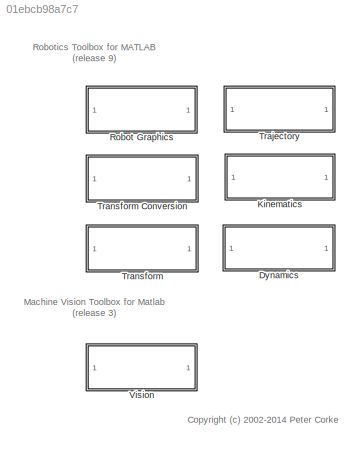
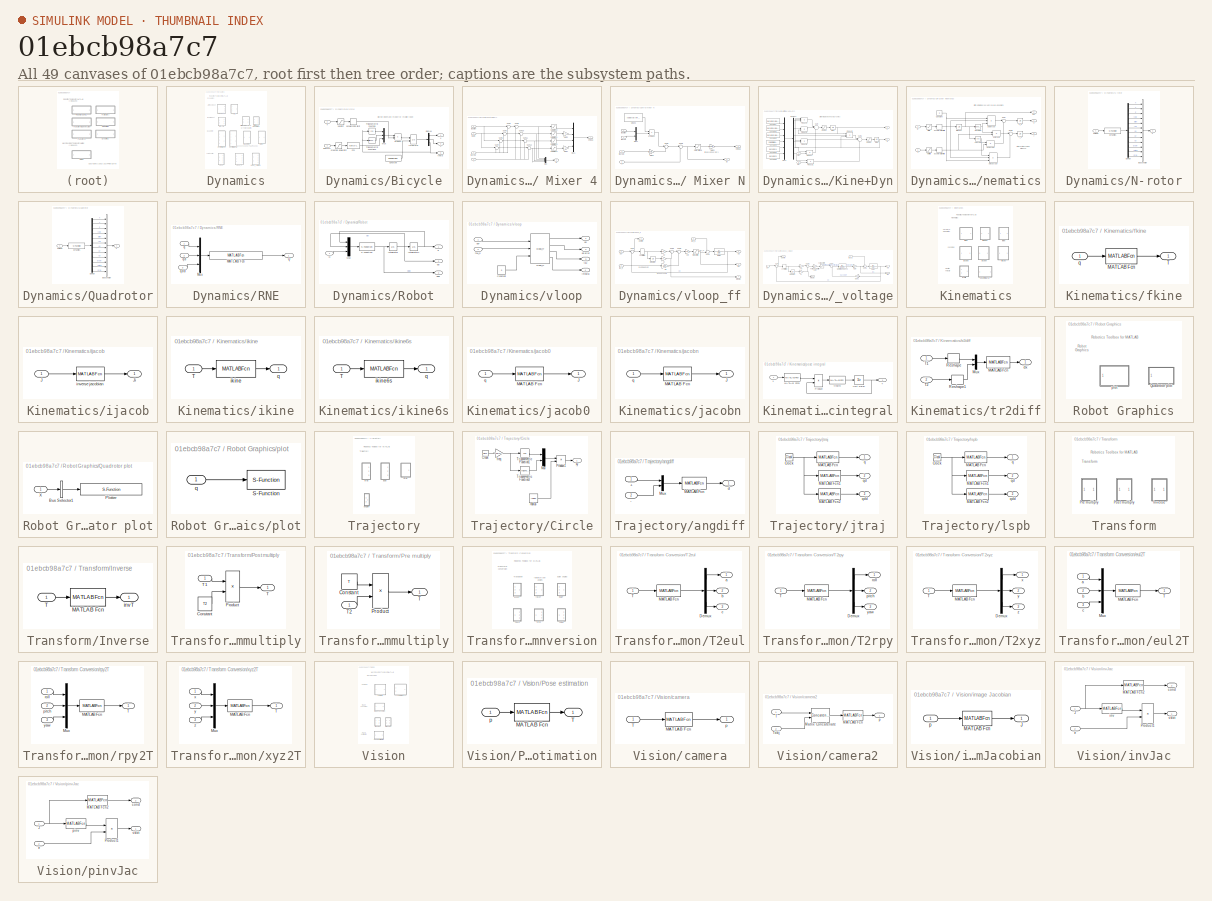
[diagram: thumbnail index - all 49 canvases of the model, root first then tree order]
MODEL slx_01ebcb98a7c7
KIND library
CONFIG AbsTol = auto
CONFIG FixedStep = auto
CONFIG MaxStep = auto
CONFIG MinStep = auto
CONFIG RelTol = 1e-3
CONFIG SampleTimeConstraint = Unconstrained
CONFIG Solver = ode45
CONFIG SolverMode = Auto
CONFIG SolverName = ode45
CONFIG StartTime = 0.0
CONFIG StopTime = 10.0
BLOCK [SubSystem] Dynamics
  Ports = []
  RequestExecContextInheritance = off
BLOCK [SubSystem] Dynamics/Bicycle
  Ports = [2, 3]
  RequestExecContextInheritance = off
BLOCK [Constant] Dynamics/Bicycle/Constant
  Value = handbrake
BLOCK [Demux] Dynamics/Bicycle/Demux
  DisplayOption = bar
  Outputs = 3
  Ports = [1, 3]
BLOCK [Fcn] Dynamics/Bicycle/Fcn
  Expr = tan(u)/L
BLOCK [Integrator] Dynamics/Bicycle/Integrator
  ExternalReset = level
  InitialCondition = x0
  Ports = [2, 1]
BLOCK [Mux] Dynamics/Bicycle/Mux
  DisplayOption = bar
  Inputs = 3
  Ports = [3, 1]
BLOCK [Product] Dynamics/Bicycle/Product
  InputSameDT = off
  OutDataTypeStr = Inherit: Inherit via internal rule
  Ports = [2, 1]
  SaturateOnIntegerOverflow = off
BLOCK [Trigonometry] Dynamics/Bicycle/Trigonometric Function
  Operator = cos
  Ports = [1, 1]
BLOCK [Trigonometry] Dynamics/Bicycle/Trigonometric Function2
  Ports = [1, 1]
BLOCK [RateLimiter] Dynamics/Bicycle/acceleration limit
  FallingSlewLimit = -accel
  RisingSlewLimit = accel
  SampleTimeMode = inherited
BLOCK [Inport] Dynamics/Bicycle/gamma
  IconDisplay = Port number
  Port = 2
BLOCK [Saturate] Dynamics/Bicycle/steering angle limit
  InputPortMap = u0
  LowerLimit = -alim
  Ports = [1, 1]
  UpperLimit = alim
BLOCK [Outport] Dynamics/Bicycle/theta
  IconDisplay = Port number
  Port = 3
BLOCK [Inport] Dynamics/Bicycle/v
  IconDisplay = Port number
BLOCK [Saturate] Dynamics/Bicycle/vel limit
  InputPortMap = u0
  LowerLimit = -vlim
  Ports = [1, 1]
  UpperLimit = vlim
BLOCK [Outport] Dynamics/Bicycle/x
  IconDisplay = Port number
BLOCK [Outport] Dynamics/Bicycle/y
  IconDisplay = Port number
  Port = 2
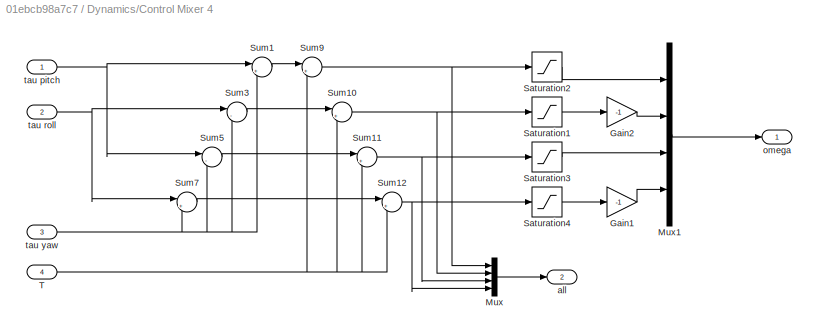
BLOCK [SubSystem] Dynamics/Control Mixer 4
  Ports = [4, 2]
  RequestExecContextInheritance = off
BLOCK [Gain] Dynamics/Control Mixer 4/Gain1
  Gain = -1
  OutDataTypeStr = Inherit: Inherit via internal rule
  ParamDataTypeStr = Inherit: Inherit via internal rule
  SaturateOnIntegerOverflow = off
BLOCK [Gain] Dynamics/Control Mixer 4/Gain2
  Gain = -1
  OutDataTypeStr = Inherit: Inherit via internal rule
  ParamDataTypeStr = Inherit: Inherit via internal rule
  SaturateOnIntegerOverflow = off
BLOCK [Mux] Dynamics/Control Mixer 4/Mux
  DisplayOption = bar
  Ports = [4, 1]
BLOCK [Mux] Dynamics/Control Mixer 4/Mux1
  DisplayOption = bar
  Ports = [4, 1]
BLOCK [Saturate] Dynamics/Control Mixer 4/Saturation1
  InputPortMap = u0
  LowerLimit = 700
  Ports = [1, 1]
  UpperLimit = 1000
BLOCK [Saturate] Dynamics/Control Mixer 4/Saturation2
  InputPortMap = u0
  LowerLimit = 700
  Ports = [1, 1]
  UpperLimit = 1000
BLOCK [Saturate] Dynamics/Control Mixer 4/Saturation3
  InputPortMap = u0
  LowerLimit = 700
  Ports = [1, 1]
  UpperLimit = 1000
BLOCK [Saturate] Dynamics/Control Mixer 4/Saturation4
  InputPortMap = u0
  LowerLimit = 700
  Ports = [1, 1]
  UpperLimit = 1000
BLOCK [Sum] Dynamics/Control Mixer 4/Sum1
  IconShape = round
  Inputs = |++
  Ports = [2, 1]
BLOCK [Sum] Dynamics/Control Mixer 4/Sum10
  IconShape = round
  Inputs = |++
  Ports = [2, 1]
BLOCK [Sum] Dynamics/Control Mixer 4/Sum11
  IconShape = round
  Inputs = |++
  Ports = [2, 1]
BLOCK [Sum] Dynamics/Control Mixer 4/Sum12
  IconShape = round
  Inputs = |++
  Ports = [2, 1]
BLOCK [Sum] Dynamics/Control Mixer 4/Sum3
  IconShape = round
  Inputs = |--
  Ports = [2, 1]
BLOCK [Sum] Dynamics/Control Mixer 4/Sum5
  IconShape = round
  Inputs = |-+
  Ports = [2, 1]
BLOCK [Sum] Dynamics/Control Mixer 4/Sum7
  IconShape = round
  Inputs = |+-
  Ports = [2, 1]
BLOCK [Sum] Dynamics/Control Mixer 4/Sum9
  IconShape = round
  Inputs = |++
  Ports = [2, 1]
BLOCK [Inport] Dynamics/Control Mixer 4/T
  IconDisplay = Port number
  Port = 4
BLOCK [Outport] Dynamics/Control Mixer 4/all
  IconDisplay = Port number
  Port = 2
BLOCK [Outport] Dynamics/Control Mixer 4/omega
  IconDisplay = Port number
BLOCK [Inport] Dynamics/Control Mixer 4/tau pitch
  IconDisplay = Port number
BLOCK [Inport] Dynamics/Control Mixer 4/tau roll
  IconDisplay = Port number
  Port = 2
BLOCK [Inport] Dynamics/Control Mixer 4/tau yaw
  IconDisplay = Port number
  Port = 3
BLOCK [SubSystem] Dynamics/Control Mixer N
  Ports = [4, 2]
  RequestExecContextInheritance = off
BLOCK [Gain] Dynamics/Control Mixer N/Gain3
  Gain = (mod([1:nrotors],2)==1)*2-1
  OutDataTypeStr = Inherit: Inherit via internal rule
  ParamDataTypeStr = Inherit: Inherit via internal rule
  SaturateOnIntegerOverflow = off
BLOCK [Gain] Dynamics/Control Mixer N/Gain4
  Gain = (mod([1:nrotors],2)==1)*2-1
  OutDataTypeStr = Inherit: Inherit via internal rule
  ParamDataTypeStr = Inherit: Inherit via internal rule
  SaturateOnIntegerOverflow = off
BLOCK [Mux] Dynamics/Control Mixer N/Mux1
  DisplayOption = bar
  Inputs = 2
  Ports = [2, 1]
BLOCK [Product] Dynamics/Control Mixer N/Product
  InputSameDT = off
  Multiplication = Matrix(*)
  OutDataTypeStr = Inherit: Inherit via internal rule
  Ports = [2, 1]
  RndMeth = Floor
  SaturateOnIntegerOverflow = off
BLOCK [Saturate] Dynamics/Control Mixer N/Saturation5
  InputPortMap = u0
  LowerLimit = wmin
  Ports = [1, 1]
  UpperLimit = wmax
BLOCK [Sum] Dynamics/Control Mixer N/Sum1
  IconShape = round
  Inputs = |++
  Ports = [2, 1]
BLOCK [Sum] Dynamics/Control Mixer N/Sum2
  IconShape = round
  Inputs = |++
  Ports = [2, 1]
BLOCK [Inport] Dynamics/Control Mixer N/T
  IconDisplay = Port number
  Port = 4
BLOCK [Outport] Dynamics/Control Mixer N/all
  IconDisplay = Port number
  Port = 2
BLOCK [Outport] Dynamics/Control Mixer N/omega
  IconDisplay = Port number
BLOCK [Constant] Dynamics/Control Mixer N/sin//cos
  SampleTime = 0
  Value = [cos([0:(nrotors-1)]'*2*pi)  -sin([0:(nrotors-1)]'*2*pi)]
  VectorParams1D = off
BLOCK [Inport] Dynamics/Control Mixer N/tau pitch
  IconDisplay = Port number
BLOCK [Inport] Dynamics/Control Mixer N/tau roll
  IconDisplay = Port number
  Port = 2
BLOCK [Inport] Dynamics/Control Mixer N/tau yaw
  IconDisplay = Port number
  Port = 3
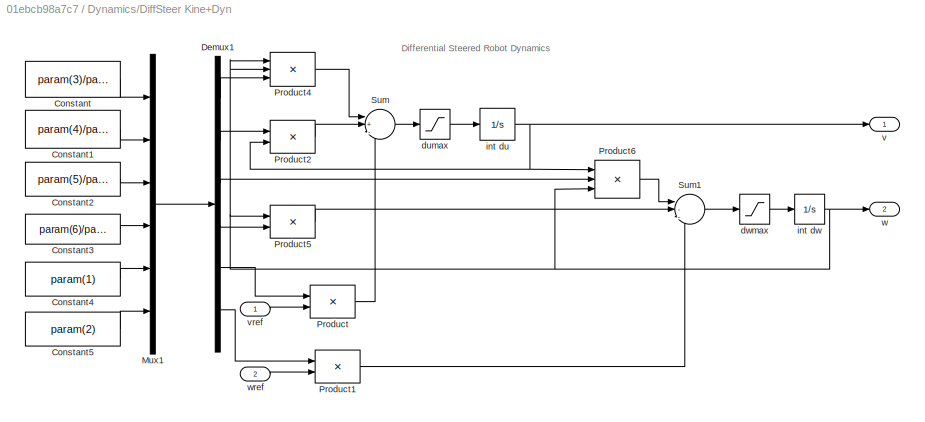
BLOCK [SubSystem] Dynamics/DiffSteer Kine+Dyn
  Ports = [2, 2]
  RequestExecContextInheritance = off
BLOCK [Constant] Dynamics/DiffSteer Kine+Dyn/Constant
  Value = param(3)/param(1)
BLOCK [Constant] Dynamics/DiffSteer Kine+Dyn/Constant1
  Value = param(4)/param(1)
BLOCK [Constant] Dynamics/DiffSteer Kine+Dyn/Constant2
  Value = param(5)/param(2)
BLOCK [Constant] Dynamics/DiffSteer Kine+Dyn/Constant3
  Value = param(6)/param(2)
BLOCK [Constant] Dynamics/DiffSteer Kine+Dyn/Constant4
  Value = param(1)
BLOCK [Constant] Dynamics/DiffSteer Kine+Dyn/Constant5
  Value = param(2)
BLOCK [Demux] Dynamics/DiffSteer Kine+Dyn/Demux1
  Outputs = 6
  Ports = [1, 6]
BLOCK [Mux] Dynamics/DiffSteer Kine+Dyn/Mux1
  DisplayOption = bar
  Inputs = 6
  Ports = [6, 1]
BLOCK [Product] Dynamics/DiffSteer Kine+Dyn/Product
  InputSameDT = off
  Ports = [2, 1]
  RndMeth = Floor
BLOCK [Product] Dynamics/DiffSteer Kine+Dyn/Product1
  InputSameDT = off
  Ports = [2, 1]
  RndMeth = Floor
BLOCK [Product] Dynamics/DiffSteer Kine+Dyn/Product2
  InputSameDT = off
  Ports = [2, 1]
  RndMeth = Floor
BLOCK [Product] Dynamics/DiffSteer Kine+Dyn/Product4
  InputSameDT = off
  Inputs = 3
  Ports = [3, 1]
  RndMeth = Floor
BLOCK [Product] Dynamics/DiffSteer Kine+Dyn/Product5
  InputSameDT = off
  Ports = [2, 1]
  RndMeth = Floor
BLOCK [Product] Dynamics/DiffSteer Kine+Dyn/Product6
  InputSameDT = off
  Inputs = 3
  Ports = [3, 1]
  RndMeth = Floor
BLOCK [Sum] Dynamics/DiffSteer Kine+Dyn/Sum
  IconShape = round
  InputSameDT = off
  Inputs = |+-+
  OutDataTypeStr = Inherit: Inherit via internal rule
  Ports = [3, 1]
BLOCK [Sum] Dynamics/DiffSteer Kine+Dyn/Sum1
  IconShape = round
  InputSameDT = off
  Inputs = |--+
  OutDataTypeStr = Inherit: Inherit via internal rule
  Ports = [3, 1]
BLOCK [Saturate] Dynamics/DiffSteer Kine+Dyn/dumax
  InputPortMap = u0
  LowerLimit = -dumax
  Ports = [1, 1]
  UpperLimit = dumax
  ZeroCross = off
BLOCK [Saturate] Dynamics/DiffSteer Kine+Dyn/dwmax
  InputPortMap = u0
  LowerLimit = -dwmax
  Ports = [1, 1]
  UpperLimit = dwmax
  ZeroCross = off
BLOCK [Integrator] Dynamics/DiffSteer Kine+Dyn/int du
  LimitOutput = on
  LowerSaturationLimit = -umax
  Ports = [1, 1]
  UpperSaturationLimit = umax
BLOCK [Integrator] Dynamics/DiffSteer Kine+Dyn/int dw
  LimitOutput = on
  LowerSaturationLimit = -wmax
  Ports = [1, 1]
  UpperSaturationLimit = wmax
BLOCK [Outport] Dynamics/DiffSteer Kine+Dyn/v
  IconDisplay = Port number
BLOCK [Inport] Dynamics/DiffSteer Kine+Dyn/vref
  IconDisplay = Port number
BLOCK [Outport] Dynamics/DiffSteer Kine+Dyn/w
  IconDisplay = Port number
  Port = 2
BLOCK [Inport] Dynamics/DiffSteer Kine+Dyn/wref
  IconDisplay = Port number
  Port = 2
BLOCK [SubSystem] Dynamics/DiffSteer Kinematics
  Ports = [2, 3]
  RequestExecContextInheritance = off
BLOCK [Constant] Dynamics/DiffSteer Kinematics/Constant
  Value = a
BLOCK [Sum] Dynamics/DiffSteer Kinematics/Sum
  IconShape = round
  InputSameDT = off
  Inputs = |-+
  OutDataTypeStr = Inherit: Inherit via internal rule
  Ports = [2, 1]
BLOCK [Sum] Dynamics/DiffSteer Kinematics/Sum1
  IconShape = round
  InputSameDT = off
  Inputs = |++
  OutDataTypeStr = Inherit: Inherit via internal rule
  Ports = [2, 1]
BLOCK [Product] Dynamics/DiffSteer Kinematics/a w cos(psi)
  InputSameDT = off
  Inputs = 3
  Ports = [3, 1]
  RndMeth = Floor
BLOCK [Product] Dynamics/DiffSteer Kinematics/a w sin(psi)
  InputSameDT = off
  Inputs = 3
  Ports = [3, 1]
  RndMeth = Floor
BLOCK [RateLimiter] Dynamics/DiffSteer Kinematics/acceleration limit
  FallingSlewLimit = -dumax
  RisingSlewLimit = dumax
  SampleTimeMode = inherited
BLOCK [RateLimiter] Dynamics/DiffSteer Kinematics/acceleration limit1
  FallingSlewLimit = -dwmax
  RisingSlewLimit = dwmax
  SampleTimeMode = inherited
BLOCK [Trigonometry] Dynamics/DiffSteer Kinematics/cos(psi)
  Operator = cos
  Ports = [1, 1]
BLOCK [Integrator] Dynamics/DiffSteer Kinematics/int w = psi
  InitialCondition = x0(3)
  Ports = [1, 1]
BLOCK [Outport] Dynamics/DiffSteer Kinematics/psi
  IconDisplay = Port number
  Port = 3
BLOCK [Trigonometry] Dynamics/DiffSteer Kinematics/sin(theta)
  Ports = [1, 1]
BLOCK [Product] Dynamics/DiffSteer Kinematics/u cos(psi)
  InputSameDT = off
  Ports = [2, 1]
  RndMeth = Floor
BLOCK [Product] Dynamics/DiffSteer Kinematics/u sin(psi)
  InputSameDT = off
  Ports = [2, 1]
  RndMeth = Floor
BLOCK [Inport] Dynamics/DiffSteer Kinematics/v
  IconDisplay = Port number
BLOCK [Saturate] Dynamics/DiffSteer Kinematics/vel limit
  InputPortMap = u0
  LowerLimit = -umax
  Ports = [1, 1]
  UpperLimit = umax
BLOCK [Inport] Dynamics/DiffSteer Kinematics/w
  IconDisplay = Port number
  Port = 2
BLOCK [Saturate] Dynamics/DiffSteer Kinematics/w limit
  InputPortMap = u0
  LowerLimit = -wmax
  Ports = [1, 1]
  UpperLimit = wmax
BLOCK [Outport] Dynamics/DiffSteer Kinematics/x
  IconDisplay = Port number
BLOCK [Integrator] Dynamics/DiffSteer Kinematics/x_0
  InitialCondition = x0(1)
  Ports = [1, 1]
BLOCK [Outport] Dynamics/DiffSteer Kinematics/y
  IconDisplay = Port number
  Port = 2
BLOCK [Integrator] Dynamics/DiffSteer Kinematics/y_0
  InitialCondition = x0(2)
  Ports = [1, 1]
BLOCK [SubSystem] Dynamics/N-rotor
  Ports = [1, 1]
  RequestExecContextInheritance = off
BLOCK [BusCreator] Dynamics/N-rotor/Bus Creator
  DisplayOption = bar
  Inputs = 'X','Y','Z','yaw','pitch','roll','dx','dy','dz','dyaw','dpitch','droll'
  Ports = [12, 1]
BLOCK [Demux] Dynamics/N-rotor/Demux
  Outputs = 12
  Ports = [1, 12]
BLOCK [S-Function] Dynamics/N-rotor/Dynamics
  FunctionName = nrotor_dynamics
  Parameters = quad
  Ports = [1, 1]
BLOCK [Outport] Dynamics/N-rotor/X
  IconDisplay = Port number
BLOCK [Inport] Dynamics/N-rotor/omega
  IconDisplay = Port number
BLOCK [SubSystem] Dynamics/Quadrotor
  Ports = [1, 1]
  RequestExecContextInheritance = off
BLOCK [BusCreator] Dynamics/Quadrotor/Bus Creator
  DisplayOption = bar
  Inputs = 'X','Y','Z','yaw','pitch','roll','dx','dy','dz','dyaw','dpitch','droll'
  Ports = [12, 1]
BLOCK [Demux] Dynamics/Quadrotor/Demux
  Outputs = 12
  Ports = [1, 12]
BLOCK [S-Function] Dynamics/Quadrotor/Dynamics
  FunctionName = quadrotor_dynamics
  Parameters = quad
  Ports = [1, 1]
BLOCK [Outport] Dynamics/Quadrotor/X
  IconDisplay = Port number
BLOCK [Inport] Dynamics/Quadrotor/omega
  IconDisplay = Port number
BLOCK [SubSystem] Dynamics/RNE
  Ports = [3, 1]
  RequestExecContextInheritance = off
BLOCK [MATLABFcn] Dynamics/RNE/MATLAB Fcn
  MATLABFcn = rne(robot, u(1:n)', u(n+1:2*n)', u(2*n+1:3*n)')
  OutputDimensions = robot.n
  Ports = [1, 1]
BLOCK [Mux] Dynamics/RNE/Mux
  DisplayOption = bar
  Inputs = 3
  Ports = [3, 1]
BLOCK [Outport] Dynamics/RNE/Q
  IconDisplay = Port number
BLOCK [Inport] Dynamics/RNE/q
  IconDisplay = Port number
BLOCK [Inport] Dynamics/RNE/qd
  IconDisplay = Port number
  Port = 2
BLOCK [Inport] Dynamics/RNE/qdd
  IconDisplay = Port number
  Port = 3
BLOCK [SubSystem] Dynamics/Robot
  Ports = [1, 3]
  RequestExecContextInheritance = off
BLOCK [Integrator] Dynamics/Robot/Integrator
  Ports = [1, 1]
BLOCK [Integrator] Dynamics/Robot/Integrator1
  InitialCondition = q0
  Ports = [1, 1]
BLOCK [Mux] Dynamics/Robot/Mux
  DisplayOption = bar
  Inputs = 3
  Ports = [3, 1]
BLOCK [Inport] Dynamics/Robot/Q
  IconDisplay = Port number
BLOCK [S-Function] Dynamics/Robot/S-Function
  FunctionName = slaccel
  Parameters = robot
  Ports = [1, 1]
BLOCK [Outport] Dynamics/Robot/q
  IconDisplay = Port number
BLOCK [Outport] Dynamics/Robot/qd
  IconDisplay = Port number
  Port = 2
BLOCK [Outport] Dynamics/Robot/qdd
  IconDisplay = Port number
  Port = 3
BLOCK [SubSystem] Dynamics/vloop
  Ports = [2, 4]
  RequestExecContextInheritance = off
BLOCK [Constant] Dynamics/vloop/Constant
  Value = 0
BLOCK [Outport] Dynamics/vloop/integral
  IconDisplay = Port number
  Port = 4
BLOCK [Outport] Dynamics/vloop/qd
  IconDisplay = Port number
BLOCK [Outport] Dynamics/vloop/qd error
  IconDisplay = Port number
  Port = 2
BLOCK [Inport] Dynamics/vloop/qd*
  IconDisplay = Port number
BLOCK [Outport] Dynamics/vloop/tau
  IconDisplay = Port number
  Port = 3
BLOCK [Inport] Dynamics/vloop/tau_d
  IconDisplay = Port number
  Port = 2
BLOCK [Reference] Dynamics/vloop/vloop_ff  REF=roblocks/Dynamics/vloop_ff  (lib defined in mdl_2a292b13c81b, mdl_69400f8cfe22, +12 more)
  B = 817e-6
  J = 372e-6
  Ki = 0
  Km = 0.228
  Kv = 1
  Ports = [3, 4]
  SourceBlock = roblocks/Dynamics/vloop_ff
  T = 0.001
  tau_max = 0.9
BLOCK [SubSystem] Dynamics/vloop_ff
  Ports = [3, 4]
  RequestExecContextInheritance = off
BLOCK [Outport] Dynamics/vloop_ff/Integral
  IconDisplay = Port number
  Port = 4
BLOCK [Integrator] Dynamics/vloop_ff/Integrator
  Ports = [1, 1]
BLOCK [Gain] Dynamics/vloop_ff/Kff
  Gain = 1/Km
  OutDataTypeStr = Inherit: Inherit via internal rule
  ParamDataTypeStr = Inherit: Inherit via internal rule
  SaturateOnIntegerOverflow = off
BLOCK [Gain] Dynamics/vloop_ff/Ki
  Gain = Ki
  OutDataTypeStr = Inherit: Inherit via internal rule
  ParamDataTypeStr = Inherit: Inherit via internal rule
  SaturateOnIntegerOverflow = off
BLOCK [Gain] Dynamics/vloop_ff/Km
  Gain = Km
  OutDataTypeStr = Inherit: Inherit via internal rule
  ParamDataTypeStr = Inherit: Inherit via internal rule
  SaturateOnIntegerOverflow = off
BLOCK [Gain] Dynamics/vloop_ff/Kv
  Gain = Kv
  OutDataTypeStr = Inherit: Inherit via internal rule
  ParamDataTypeStr = Inherit: Inherit via internal rule
  SaturateOnIntegerOverflow = off
BLOCK [Sum] Dynamics/vloop_ff/Sum
  IconShape = round
  InputSameDT = off
  Inputs = |+-
  OutDataTypeStr = Inherit: Inherit via internal rule
  Ports = [2, 1]
  SaturateOnIntegerOverflow = off
BLOCK [Sum] Dynamics/vloop_ff/Sum1
  IconShape = round
  InputSameDT = off
  Inputs = -+|
  OutDataTypeStr = Inherit: Inherit via internal rule
  Ports = [2, 1]
  SaturateOnIntegerOverflow = off
BLOCK [Sum] Dynamics/vloop_ff/Sum2
  IconShape = round
  InputSameDT = off
  Inputs = |++
  OutDataTypeStr = Inherit: Inherit via internal rule
  Ports = [2, 1]
  SaturateOnIntegerOverflow = off
BLOCK [Sum] Dynamics/vloop_ff/Sum3
  IconShape = round
  InputSameDT = off
  Inputs = |++
  OutDataTypeStr = Inherit: Inherit via internal rule
  Ports = [2, 1]
  SaturateOnIntegerOverflow = off
BLOCK [Delay] Dynamics/vloop_ff/control time
  DelayLength = 1
  InputPortMap = u0
  InputProcessing = Inherited
  Ports = [1, 1]
  SampleTime = T
  UserDataPersistent = on
BLOCK [TransferFcn] Dynamics/vloop_ff/motor
  ContinuousStateAttributes = 'qd'
  Denominator = [J B]
BLOCK [Outport] Dynamics/vloop_ff/qd
  IconDisplay = Port number
BLOCK [Outport] Dynamics/vloop_ff/qd error
  IconDisplay = Port number
  Port = 2
BLOCK [Inport] Dynamics/vloop_ff/qd*
  IconDisplay = Port number
BLOCK [Outport] Dynamics/vloop_ff/tau
  IconDisplay = Port number
  Port = 3
BLOCK [Inport] Dynamics/vloop_ff/tau_d
  IconDisplay = Port number
  Port = 2
BLOCK [Inport] Dynamics/vloop_ff/tau_ff
  IconDisplay = Port number
  Port = 3
BLOCK [Saturate] Dynamics/vloop_ff/torque limit
  InputPortMap = u0
  LowerLimit = -tau_max
  Ports = [1, 1]
  UpperLimit = tau_max
BLOCK [SubSystem] Dynamics/vloop_voltage
  Ports = [2, 4]
  RequestExecContextInheritance = off
BLOCK [Gain] Dynamics/vloop_voltage/Gain
  Gain = Km
  OutDataTypeStr = Inherit: Inherit via internal rule
  ParamDataTypeStr = Inherit: Inherit via internal rule
  SaturateOnIntegerOverflow = off
BLOCK [Gain] Dynamics/vloop_voltage/Gain1
  Gain = Km
  OutDataTypeStr = Inherit: Inherit via internal rule
  ParamDataTypeStr = Inherit: Inherit via internal rule
  SaturateOnIntegerOverflow = off
BLOCK [Integrator] Dynamics/vloop_voltage/Integrator
  Ports = [1, 1]
BLOCK [Gain] Dynamics/vloop_voltage/Ki
  Gain = Ki
  OutDataTypeStr = Inherit: Inherit via internal rule
  ParamDataTypeStr = Inherit: Inherit via internal rule
  SaturateOnIntegerOverflow = off
BLOCK [Gain] Dynamics/vloop_voltage/Kv
  Gain = Kv
  OutDataTypeStr = Inherit: Inherit via internal rule
  ParamDataTypeStr = Inherit: Inherit via internal rule
  SaturateOnIntegerOverflow = off
BLOCK [TransferFcn] Dynamics/vloop_voltage/Motor impedance
  Denominator = [Lm Rm]
BLOCK [Sum] Dynamics/vloop_voltage/Sum
  IconShape = round
  InputSameDT = off
  Inputs = |+-
  OutDataTypeStr = Inherit: Inherit via internal rule
  Ports = [2, 1]
  SaturateOnIntegerOverflow = off
BLOCK [Sum] Dynamics/vloop_voltage/Sum1
  IconShape = round
  InputSameDT = off
  Inputs = -+|
  OutDataTypeStr = Inherit: Inherit via internal rule
  Ports = [2, 1]
  SaturateOnIntegerOverflow = off
BLOCK [Sum] Dynamics/vloop_voltage/Sum2
  IconShape = round
  InputSameDT = off
  Inputs = |++
  OutDataTypeStr = Inherit: Inherit via internal rule
  Ports = [2, 1]
  SaturateOnIntegerOverflow = off
BLOCK [Sum] Dynamics/vloop_voltage/Sum3
  IconShape = round
  InputSameDT = off
  Inputs = |+-
  OutDataTypeStr = Inherit: Inherit via internal rule
  Ports = [2, 1]
  SaturateOnIntegerOverflow = off
BLOCK [Delay] Dynamics/vloop_voltage/control time
  DelayLength = 1
  InputPortMap = u0
  InputProcessing = Inherited
  Ports = [1, 1]
  SampleTime = T
  UserDataPersistent = on
BLOCK [Outport] Dynamics/vloop_voltage/integral
  IconDisplay = Port number
  Port = 4
BLOCK [TransferFcn] Dynamics/vloop_voltage/motor
  ContinuousStateAttributes = 'qd'
  Denominator = [J B]
BLOCK [Outport] Dynamics/vloop_voltage/qd
  IconDisplay = Port number
  Port = 2
BLOCK [Outport] Dynamics/vloop_voltage/qd error
  IconDisplay = Port number
BLOCK [Inport] Dynamics/vloop_voltage/qd*
  IconDisplay = Port number
BLOCK [Outport] Dynamics/vloop_voltage/tau
  IconDisplay = Port number
  Port = 3
BLOCK [Inport] Dynamics/vloop_voltage/tau_d
  IconDisplay = Port number
  Port = 2
BLOCK [Gain] Dynamics/vloop_voltage/voltage amplifier gain
  Gain = Ka
  OutDataTypeStr = Inherit: Inherit via internal rule
  ParamDataTypeStr = Inherit: Inherit via internal rule
  SaturateOnIntegerOverflow = off
BLOCK [Saturate] Dynamics/vloop_voltage/voltage limit
  InputPortMap = u0
  LowerLimit = -v_max
  Ports = [1, 1]
  UpperLimit = v_max
BLOCK [SubSystem] Kinematics
  Ports = []
  RequestExecContextInheritance = off
BLOCK [SubSystem] Kinematics/fkine
  Ports = [1, 1]
  RequestExecContextInheritance = off
BLOCK [MATLABFcn] Kinematics/fkine/MATLAB Fcn
  MATLABFcn = fkine(robot,u)
  Output1D = off
  OutputDimensions = [4 4]
  Ports = [1, 1]
BLOCK [Outport] Kinematics/fkine/T
  IconDisplay = Port number
BLOCK [Inport] Kinematics/fkine/q
  IconDisplay = Port number
BLOCK [SubSystem] Kinematics/ijacob
  Ports = [1, 1]
  RequestExecContextInheritance = off
BLOCK [Inport] Kinematics/ijacob/J
  IconDisplay = Port number
BLOCK [Outport] Kinematics/ijacob/Ji
  IconDisplay = Port number
BLOCK [MATLABFcn] Kinematics/ijacob/inverse jacobian
  MATLABFcn = inv(u)
  Output1D = off
  Ports = [1, 1]
BLOCK [SubSystem] Kinematics/ikine
  Ports = [1, 1]
  RequestExecContextInheritance = off
BLOCK [Inport] Kinematics/ikine/T
  IconDisplay = Port number
BLOCK [MATLABFcn] Kinematics/ikine/ikine
  MATLABFcn = robot.ikine(u, q0, M, opt{:})
  Ports = [1, 1]
BLOCK [Outport] Kinematics/ikine/q
  IconDisplay = Port number
BLOCK [SubSystem] Kinematics/ikine6s
  Ports = [1, 1]
  RequestExecContextInheritance = off
BLOCK [Inport] Kinematics/ikine6s/T
  IconDisplay = Port number
BLOCK [MATLABFcn] Kinematics/ikine6s/ikine6s
  MATLABFcn = robot.ikine6s(u,conf)
  Ports = [1, 1]
BLOCK [Outport] Kinematics/ikine6s/q
  IconDisplay = Port number
BLOCK [SubSystem] Kinematics/jacob0 
  Ports = [1, 1]
  RequestExecContextInheritance = off
BLOCK [Outport] Kinematics/jacob0 /J
  IconDisplay = Port number
BLOCK [MATLABFcn] Kinematics/jacob0 /MATLAB Fcn
  MATLABFcn = jacob0(robot,u)
  Output1D = off
  OutputDimensions = [6 n]
  Ports = [1, 1]
BLOCK [Inport] Kinematics/jacob0 /q
  IconDisplay = Port number
BLOCK [SubSystem] Kinematics/jacobn
  Ports = [1, 1]
  RequestExecContextInheritance = off
BLOCK [Outport] Kinematics/jacobn/J
  IconDisplay = Port number
BLOCK [MATLABFcn] Kinematics/jacobn/MATLAB Fcn
  MATLABFcn = jacobn(robot,u)
  Output1D = off
  OutputDimensions = [6 n]
  Ports = [1, 1]
BLOCK [Inport] Kinematics/jacobn/q
  IconDisplay = Port number
BLOCK [SubSystem] Kinematics/pose integral
  Ports = [1, 1]
  RequestExecContextInheritance = off
BLOCK [MATLABFcn] Kinematics/pose integral/MATLAB Fcn3
  MATLABFcn = delta2tr(u*dt)
  Output1D = off
  Ports = [1, 1]
BLOCK [Product] Kinematics/pose integral/Product
  InputSameDT = off
  Multiplication = Matrix(*)
  OutDataTypeStr = Inherit: Inherit via internal rule
  Ports = [2, 1]
  SaturateOnIntegerOverflow = off
BLOCK [Outport] Kinematics/pose integral/T
  IconDisplay = Port number
BLOCK [UnitDelay] Kinematics/pose integral/Unit Delay
  InitialCondition = T0
  SampleTime = dt
BLOCK [MATLABFcn] Kinematics/pose integral/trnorm
  MATLABFcn = trnorm(u)
  Output1D = off
  Ports = [1, 1]
BLOCK [Inport] Kinematics/pose integral/v
  IconDisplay = Port number
BLOCK [SubSystem] Kinematics/tr2diff
  Ports = [2, 1]
  RequestExecContextInheritance = off
BLOCK [MATLABFcn] Kinematics/tr2diff/MATLAB Fcn
  MATLABFcn = tr2delta(reshape(u(1:16),4,4), reshape(u(17:32),4,4))
  OutputDimensions = 6
  Ports = [1, 1]
BLOCK [Mux] Kinematics/tr2diff/Mux
  DisplayOption = bar
  Inputs = 2
  Ports = [2, 1]
BLOCK [Reshape] Kinematics/tr2diff/Reshape
  Ports = [1, 1]
BLOCK [Reshape] Kinematics/tr2diff/Reshape1
  Ports = [1, 1]
BLOCK [Inport] Kinematics/tr2diff/T1
  IconDisplay = Port number
BLOCK [Inport] Kinematics/tr2diff/T2
  IconDisplay = Port number
  Port = 2
BLOCK [Outport] Kinematics/tr2diff/dx
  IconDisplay = Port number
BLOCK [SubSystem] Robot Graphics
  Ports = []
  RequestExecContextInheritance = off
BLOCK [SubSystem] Robot Graphics/Quadrotor plot
  Ports = [1]
  RequestExecContextInheritance = off
BLOCK [BusSelector] Robot Graphics/Quadrotor plot/Bus Selector1
  OutputAsBus = on
  OutputSignals = X,Y,Z,yaw,pitch,roll
  Ports = [1, 1]
BLOCK [S-Function] Robot Graphics/Quadrotor plot/Plotter
  FunctionName = quadrotor_plot
  Parameters = [xydim, zdim], 1, 1,quad
  Ports = [1]
BLOCK [Inport] Robot Graphics/Quadrotor plot/X
  IconDisplay = Port number
BLOCK [SubSystem] Robot Graphics/plot
  Ports = [1]
  RequestExecContextInheritance = off
BLOCK [S-Function] Robot Graphics/plot/S-Function
  FunctionName = slplotbot
  Parameters = robot,fps,holdplot
  Ports = [1]
BLOCK [Inport] Robot Graphics/plot/q
  IconDisplay = Port number
BLOCK [SubSystem] Trajectory
  Ports = []
  RequestExecContextInheritance = off
BLOCK [SubSystem] Trajectory/Circle
  Ports = [0, 1]
  RequestExecContextInheritance = off
BLOCK [Clock] Trajectory/Circle/Clock
BLOCK [Mux] Trajectory/Circle/Mux
  DisplayOption = bar
  Inputs = 2
  Ports = [2, 1]
BLOCK [Product] Trajectory/Circle/Product1
  InputSameDT = off
  OutDataTypeStr = Inherit: Inherit via internal rule
  Ports = [2, 1]
  SaturateOnIntegerOverflow = off
BLOCK [Trigonometry] Trajectory/Circle/Trigonometric Function1
  Operator = cos
  Ports = [1, 1]
BLOCK [Trigonometry] Trajectory/Circle/Trigonometric Function3
  Ports = [1, 1]
BLOCK [Gain] Trajectory/Circle/freq
  Gain = freq*2*pi
  OutDataTypeStr = Inherit: Inherit via internal rule
  ParamDataTypeStr = Inherit: Inherit via internal rule
  SaturateOnIntegerOverflow = off
BLOCK [Constant] Trajectory/Circle/radius
  Value = radius
BLOCK [Outport] Trajectory/Circle/xy
  IconDisplay = Port number
BLOCK [SubSystem] Trajectory/angdiff
  Ports = [2, 1]
  RequestExecContextInheritance = off
BLOCK [Inport] Trajectory/angdiff/+
  IconDisplay = Port number
BLOCK [Inport] Trajectory/angdiff/-
  IconDisplay = Port number
  Port = 2
BLOCK [MATLABFcn] Trajectory/angdiff/MATLAB Fcn
  MATLABFcn = angdiff(u(1), u(2))
  Ports = [1, 1]
BLOCK [Mux] Trajectory/angdiff/Mux
  DisplayOption = bar
  Inputs = 2
  Ports = [2, 1]
BLOCK [Outport] Trajectory/angdiff/d
  IconDisplay = Port number
BLOCK [SubSystem] Trajectory/jtraj
  Ports = [0, 3]
  RequestExecContextInheritance = off
BLOCK [Clock] Trajectory/jtraj/Clock
BLOCK [MATLABFcn] Trajectory/jtraj/MATLAB Fcn
  MATLABFcn = interp1(t,q,u)
  OutputDimensions = n
  Ports = [1, 1]
  SampleTime = ts
BLOCK [MATLABFcn] Trajectory/jtraj/MATLAB Fcn1
  MATLABFcn = interp1(t,qd,u)
  OutputDimensions = n
  Ports = [1, 1]
  SampleTime = ts
BLOCK [MATLABFcn] Trajectory/jtraj/MATLAB Fcn2
  MATLABFcn = interp1(t,qdd,u)
  OutputDimensions = n
  Ports = [1, 1]
  SampleTime = ts
BLOCK [Outport] Trajectory/jtraj/q
  IconDisplay = Port number
BLOCK [Outport] Trajectory/jtraj/qd
  IconDisplay = Port number
  Port = 2
BLOCK [Outport] Trajectory/jtraj/qdd
  IconDisplay = Port number
  Port = 3
BLOCK [SubSystem] Trajectory/lspb
  Ports = [0, 3]
  RequestExecContextInheritance = off
BLOCK [Clock] Trajectory/lspb/Clock
BLOCK [MATLABFcn] Trajectory/lspb/MATLAB Fcn
  MATLABFcn = interp1(t,q,u)
  OutputDimensions = n
  Ports = [1, 1]
BLOCK [MATLABFcn] Trajectory/lspb/MATLAB Fcn1
  MATLABFcn = interp1(t,qd,u)
  OutputDimensions = n
  Ports = [1, 1]
BLOCK [MATLABFcn] Trajectory/lspb/MATLAB Fcn2
  MATLABFcn = interp1(t,qdd,u)
  OutputDimensions = n
  Ports = [1, 1]
BLOCK [Outport] Trajectory/lspb/q
  IconDisplay = Port number
BLOCK [Outport] Trajectory/lspb/qd
  IconDisplay = Port number
  Port = 2
BLOCK [Outport] Trajectory/lspb/qdd
  IconDisplay = Port number
  Port = 3
BLOCK [SubSystem] Transform
  Ports = []
  RequestExecContextInheritance = off
BLOCK [SubSystem] Transform Conversion
  Ports = []
  RequestExecContextInheritance = off
BLOCK [SubSystem] Transform Conversion/T2eul
  Ports = [1, 3]
  RequestExecContextInheritance = off
BLOCK [Demux] Transform Conversion/T2eul/Demux
  Outputs = 3
  Ports = [1, 3]
BLOCK [MATLABFcn] Transform Conversion/T2eul/MATLAB Fcn
  MATLABFcn = tr2eul(u)
  OutputDimensions = 3
  Ports = [1, 1]
BLOCK [Inport] Transform Conversion/T2eul/T
  IconDisplay = Port number
BLOCK [Outport] Transform Conversion/T2eul/a
  IconDisplay = Port number
BLOCK [Outport] Transform Conversion/T2eul/b
  IconDisplay = Port number
  Port = 2
BLOCK [Outport] Transform Conversion/T2eul/c
  IconDisplay = Port number
  Port = 3
BLOCK [SubSystem] Transform Conversion/T2rpy
  Ports = [1, 3]
  RequestExecContextInheritance = off
BLOCK [Demux] Transform Conversion/T2rpy/Demux
  Outputs = 3
  Ports = [1, 3]
BLOCK [MATLABFcn] Transform Conversion/T2rpy/MATLAB Fcn
  MATLABFcn = tr2rpy(u)
  OutputDimensions = 3
  Ports = [1, 1]
BLOCK [Inport] Transform Conversion/T2rpy/T
  IconDisplay = Port number
BLOCK [Outport] Transform Conversion/T2rpy/pitch
  IconDisplay = Port number
  Port = 2
BLOCK [Outport] Transform Conversion/T2rpy/roll
  IconDisplay = Port number
BLOCK [Outport] Transform Conversion/T2rpy/yaw
  IconDisplay = Port number
  Port = 3
BLOCK [SubSystem] Transform Conversion/T2xyz
  Ports = [1, 3]
  RequestExecContextInheritance = off
BLOCK [Demux] Transform Conversion/T2xyz/Demux
  Outputs = 3
  Ports = [1, 3]
BLOCK [MATLABFcn] Transform Conversion/T2xyz/MATLAB Fcn
  MATLABFcn = transl(u)
  OutputDimensions = 3
  Ports = [1, 1]
BLOCK [Inport] Transform Conversion/T2xyz/T
  IconDisplay = Port number
BLOCK [Outport] Transform Conversion/T2xyz/x
  IconDisplay = Port number
BLOCK [Outport] Transform Conversion/T2xyz/y
  IconDisplay = Port number
  Port = 2
BLOCK [Outport] Transform Conversion/T2xyz/z
  IconDisplay = Port number
  Port = 3
BLOCK [SubSystem] Transform Conversion/eul2T
  Ports = [3, 1]
  RequestExecContextInheritance = off
BLOCK [MATLABFcn] Transform Conversion/eul2T/MATLAB Fcn
  MATLABFcn = eul2tr(u)
  Output1D = off
  OutputDimensions = [4 4]
  Ports = [1, 1]
BLOCK [Mux] Transform Conversion/eul2T/Mux
  DisplayOption = bar
  Inputs = 3
  Ports = [3, 1]
BLOCK [Outport] Transform Conversion/eul2T/T
  IconDisplay = Port number
BLOCK [Inport] Transform Conversion/eul2T/a
  IconDisplay = Port number
BLOCK [Inport] Transform Conversion/eul2T/b
  IconDisplay = Port number
  Port = 2
BLOCK [Inport] Transform Conversion/eul2T/c
  IconDisplay = Port number
  Port = 3
BLOCK [SubSystem] Transform Conversion/rpy2T
  Ports = [3, 1]
  RequestExecContextInheritance = off
BLOCK [MATLABFcn] Transform Conversion/rpy2T/MATLAB Fcn
  MATLABFcn = rpy2tr(u)
  Output1D = off
  OutputDimensions = [4 4]
  Ports = [1, 1]
BLOCK [Mux] Transform Conversion/rpy2T/Mux
  DisplayOption = bar
  Inputs = 3
  Ports = [3, 1]
BLOCK [Outport] Transform Conversion/rpy2T/T
  IconDisplay = Port number
BLOCK [Inport] Transform Conversion/rpy2T/pitch
  IconDisplay = Port number
  Port = 2
BLOCK [Inport] Transform Conversion/rpy2T/roll
  IconDisplay = Port number
BLOCK [Inport] Transform Conversion/rpy2T/yaw
  IconDisplay = Port number
  Port = 3
BLOCK [SubSystem] Transform Conversion/xyz2T
  Ports = [3, 1]
  RequestExecContextInheritance = off
BLOCK [MATLABFcn] Transform Conversion/xyz2T/MATLAB Fcn
  MATLABFcn = transl(u)
  Output1D = off
  OutputDimensions = [4 4]
  Ports = [1, 1]
BLOCK [Mux] Transform Conversion/xyz2T/Mux
  DisplayOption = bar
  Inputs = 3
  Ports = [3, 1]
BLOCK [Outport] Transform Conversion/xyz2T/T
  IconDisplay = Port number
BLOCK [Inport] Transform Conversion/xyz2T/x
  IconDisplay = Port number
BLOCK [Inport] Transform Conversion/xyz2T/y
  IconDisplay = Port number
  Port = 2
BLOCK [Inport] Transform Conversion/xyz2T/z
  IconDisplay = Port number
  Port = 3
BLOCK [SubSystem] Transform/Inverse
  Ports = [1, 1]
  RequestExecContextInheritance = off
BLOCK [MATLABFcn] Transform/Inverse/MATLAB Fcn
  MATLABFcn = inv(u)
  Output1D = off
  OutputDimensions = [4,4]
  Ports = [1, 1]
BLOCK [Inport] Transform/Inverse/T
  IconDisplay = Port number
BLOCK [Outport] Transform/Inverse/invT
  IconDisplay = Port number
BLOCK [SubSystem] Transform/Post multiply
  Ports = [1, 1]
  RequestExecContextInheritance = off
BLOCK [Constant] Transform/Post multiply/Constant
  Value = T2
BLOCK [Product] Transform/Post multiply/Product
  InputSameDT = off
  Multiplication = Matrix(*)
  OutDataTypeStr = Inherit: Inherit via internal rule
  Ports = [2, 1]
  SaturateOnIntegerOverflow = off
BLOCK [Outport] Transform/Post multiply/T
  IconDisplay = Port number
BLOCK [Inport] Transform/Post multiply/T1
  IconDisplay = Port number
BLOCK [SubSystem] Transform/Pre multiply
  Ports = [1, 1]
  RequestExecContextInheritance = off
BLOCK [Constant] Transform/Pre multiply/Constant
  Value = T
  VectorParams1D = off
BLOCK [Product] Transform/Pre multiply/Product
  InputSameDT = off
  Multiplication = Matrix(*)
  OutDataTypeStr = Inherit: Inherit via internal rule
  Ports = [2, 1]
  SaturateOnIntegerOverflow = off
BLOCK [Outport] Transform/Pre multiply/T
  IconDisplay = Port number
BLOCK [Inport] Transform/Pre multiply/T2
  IconDisplay = Port number
BLOCK [SubSystem] Vision
  Ports = []
  RequestExecContextInheritance = off
BLOCK [SubSystem] Vision/Pose estimation
  Ports = [1, 1]
  RequestExecContextInheritance = off
BLOCK [MATLABFcn] Vision/Pose estimation/MATLAB Fcn
  MATLABFcn = cam.estpose(P, u)
  Output1D = off
  OutputDimensions = [4,4]
  Ports = [1, 1]
BLOCK [Outport] Vision/Pose estimation/T
  IconDisplay = Port number
BLOCK [Inport] Vision/Pose estimation/p
  IconDisplay = Port number
BLOCK [SubSystem] Vision/camera
  Ports = [1, 1]
  RequestExecContextInheritance = off
BLOCK [MATLABFcn] Vision/camera/MATLAB Fcn
  MATLABFcn = cam.plot(points, 'Tcam', u)
  Output1D = off
  OutputSignalType = real
  Ports = [1, 1]
BLOCK [Inport] Vision/camera/T
  IconDisplay = Port number
BLOCK [Outport] Vision/camera/p
  IconDisplay = Port number
BLOCK [SubSystem] Vision/camera2
  Ports = [2, 1]
  RequestExecContextInheritance = off
BLOCK [MATLABFcn] Vision/camera2/MATLAB Fcn
  MATLABFcn = cam.plot(points, 'Tcam', u(:,:,1), 'Tobj', u(:,:,2), 'drawnow')
  Output1D = off
  OutputDimensions = [2,numcols(points)]
  OutputSignalType = real
  Ports = [1, 1]
BLOCK [Concatenate] Vision/camera2/Matrix Concatenate
  ConcatenateDimension = 3
  Mode = Multidimensional array
  Ports = [2, 1]
BLOCK [Inport] Vision/camera2/T
  IconDisplay = Port number
BLOCK [Inport] Vision/camera2/Tobj
  IconDisplay = Port number
  Port = 2
BLOCK [Outport] Vision/camera2/p
  IconDisplay = Port number
BLOCK [SubSystem] Vision/image Jacobian
  Ports = [1, 1]
  RequestExecContextInheritance = off
BLOCK [Outport] Vision/image Jacobian/J
  IconDisplay = Port number
BLOCK [MATLABFcn] Vision/image Jacobian/MATLAB Fcn
  MATLABFcn = cam.visjac_p(u, z)
  Output1D = off
  Ports = [1, 1]
BLOCK [Inport] Vision/image Jacobian/p
  IconDisplay = Port number
BLOCK [SubSystem] Vision/invJac
  Ports = [2, 2]
  RequestExecContextInheritance = off
BLOCK [Inport] Vision/invJac/J
  IconDisplay = Port number
BLOCK [MATLABFcn] Vision/invJac/MATLAB Fcn2
  MATLABFcn = cond(u)
  Output1D = off
  Ports = [1, 1]
BLOCK [Product] Vision/invJac/Product1
  Multiplication = Matrix(*)
  Ports = [2, 1]
BLOCK [Outport] Vision/invJac/cond
  IconDisplay = Port number
  Port = 2
BLOCK [Inport] Vision/invJac/e
  IconDisplay = Port number
  Port = 2
BLOCK [MATLABFcn] Vision/invJac/inv
  MATLABFcn = pinv(u)
  Output1D = off
  Ports = [1, 1]
BLOCK [Outport] Vision/invJac/vdot
  IconDisplay = Port number
BLOCK [SubSystem] Vision/pinvJac
  Ports = [2, 2]
  RequestExecContextInheritance = off
BLOCK [Inport] Vision/pinvJac/J
  IconDisplay = Port number
BLOCK [MATLABFcn] Vision/pinvJac/MATLAB Fcn2
  MATLABFcn = cond(u)
  Output1D = off
  Ports = [1, 1]
BLOCK [Product] Vision/pinvJac/Product1
  Multiplication = Matrix(*)
  Ports = [2, 1]
BLOCK [Outport] Vision/pinvJac/cond
  IconDisplay = Port number
  Port = 2
BLOCK [Inport] Vision/pinvJac/e
  IconDisplay = Port number
  Port = 2
BLOCK [MATLABFcn] Vision/pinvJac/pinv
  MATLABFcn = pinv(u)
  Output1D = off
  Ports = [1, 1]
BLOCK [Outport] Vision/pinvJac/vdot
  IconDisplay = Port number
ANNOTATION (root): <copyright redacted>
ANNOTATION (root): Machine Vision Toolbox for Matlab (release 3)
ANNOTATION (root): Robotics Toolbox for MATLAB (release 9)
ANNOTATION Dynamics: Dynamics
ANNOTATION Dynamics: Mobile robot
ANNOTATION Dynamics: Arm-type robot
ANNOTATION Dynamics: Based on code by Paul Pounds
ANNOTATION Dynamics: By Felipe N. Martins
ANNOTATION Dynamics: Joint control
ANNOTATION Dynamics: Quadrotor
ANNOTATION Dynamics: Robotics Toolbox for MATLAB
ANNOTATION Dynamics/Bicycle: Bicycle kinematic model for mobile robot
ANNOTATION Dynamics/Control Mixer N: flip signs of odd rotors
ANNOTATION Dynamics/DiffSteer Kine+Dyn: Differential Steered Robot Dynamics
ANNOTATION Dynamics/DiffSteer Kinematics: Differential Steered (Unicycle-like) Kinematics
ANNOTATION Dynamics/DiffSteer Kinematics: Initial conditions define initial pose
ANNOTATION Dynamics/vloop_ff: feedback path
ANNOTATION Dynamics/vloop_ff: feedforward path
ANNOTATION Dynamics/vloop_ff: tau_m
ANNOTATION Kinematics: Kinematics
ANNOTATION Kinematics: Forward kinematics
ANNOTATION Kinematics: Jacobian
ANNOTATION Kinematics: Robotics Toolbox for MATLAB
ANNOTATION Kinematics: Spatial velocity
ANNOTATION Robot Graphics: Robot Graphics
ANNOTATION Robot Graphics: Robotics Toolbox for MATLAB
ANNOTATION Trajectory: Trajectory
ANNOTATION Trajectory: Robotics Toolbox for MATLAB
ANNOTATION Transform: Transform
ANNOTATION Transform: Robotics Toolbox for MATLAB
ANNOTATION Transform Conversion: Transform conversion
ANNOTATION Transform Conversion: Euler angles
ANNOTATION Transform Conversion: Robotics Toolbox for MATLAB
ANNOTATION Transform Conversion: Translation
ANNOTATION Transform Conversion: roll/pitch/yaw angles
ANNOTATION Vision: Machine Vision
ANNOTATION Vision: Cameras
ANNOTATION Vision: Image Jacobian
ANNOTATION Vision: Machine Vision Toolbox for MATLAB
ANNOTATION Vision: Pose estimation
LINE Dynamics/Control Mixer N/Gain3:1 -> Dynamics/Control Mixer N/omega:1
LINE Dynamics/Control Mixer N/Gain4:1 -> Dynamics/Control Mixer N/Sum1:2
LINE Dynamics/Control Mixer N/Mux1:1 -> Dynamics/Control Mixer N/Product:2
LINE Dynamics/Control Mixer N/Product:1 -> Dynamics/Control Mixer N/Sum1:1
LINE Dynamics/Control Mixer N/Saturation5:1 -> Dynamics/Control Mixer N/Gain3:1
LINE Dynamics/Control Mixer N/Sum1:1 -> Dynamics/Control Mixer N/Sum2:1
NET Dynamics/Control Mixer N/Sum2:1 -> Dynamics/Control Mixer N/Saturation5:1, Dynamics/Control Mixer N/all:1
LINE Dynamics/Control Mixer N/T:1 -> Dynamics/Control Mixer N/Sum2:2
LINE Dynamics/Control Mixer N/sin//cos:1 -> Dynamics/Control Mixer N/Product:1
LINE Dynamics/Control Mixer N/tau pitch:1 -> Dynamics/Control Mixer N/Mux1:1
LINE Dynamics/Control Mixer N/tau roll:1 -> Dynamics/Control Mixer N/Mux1:2
LINE Dynamics/Control Mixer N/tau yaw:1 -> Dynamics/Control Mixer N/Gain4:1
LINE Dynamics/DiffSteer Kine+Dyn/Constant1:1 -> Dynamics/DiffSteer Kine+Dyn/Mux1:2
LINE Dynamics/DiffSteer Kine+Dyn/Constant2:1 -> Dynamics/DiffSteer Kine+Dyn/Mux1:3
LINE Dynamics/DiffSteer Kine+Dyn/Constant3:1 -> Dynamics/DiffSteer Kine+Dyn/Mux1:4
LINE Dynamics/DiffSteer Kine+Dyn/Constant4:1 -> Dynamics/DiffSteer Kine+Dyn/Mux1:5
LINE Dynamics/DiffSteer Kine+Dyn/Constant5:1 -> Dynamics/DiffSteer Kine+Dyn/Mux1:6
LINE Dynamics/DiffSteer Kine+Dyn/Constant:1 -> Dynamics/DiffSteer Kine+Dyn/Mux1:1
LINE Dynamics/DiffSteer Kine+Dyn/Demux1:1 -> Dynamics/DiffSteer Kine+Dyn/Product4:3
LINE Dynamics/DiffSteer Kine+Dyn/Demux1:2 -> Dynamics/DiffSteer Kine+Dyn/Product2:1
LINE Dynamics/DiffSteer Kine+Dyn/Demux1:3 -> Dynamics/DiffSteer Kine+Dyn/Product6:2
LINE Dynamics/DiffSteer Kine+Dyn/Demux1:4 -> Dynamics/DiffSteer Kine+Dyn/Product5:2
LINE Dynamics/DiffSteer Kine+Dyn/Demux1:5 -> Dynamics/DiffSteer Kine+Dyn/Product:1
LINE Dynamics/DiffSteer Kine+Dyn/Demux1:6 -> Dynamics/DiffSteer Kine+Dyn/Product1:1
LINE Dynamics/DiffSteer Kine+Dyn/Mux1:1 -> Dynamics/DiffSteer Kine+Dyn/Demux1:1
LINE Dynamics/DiffSteer Kine+Dyn/Product1:1 -> Dynamics/DiffSteer Kine+Dyn/Sum1:3
LINE Dynamics/DiffSteer Kine+Dyn/Product2:1 -> Dynamics/DiffSteer Kine+Dyn/Sum:2
LINE Dynamics/DiffSteer Kine+Dyn/Product4:1 -> Dynamics/DiffSteer Kine+Dyn/Sum:1
LINE Dynamics/DiffSteer Kine+Dyn/Product5:1 -> Dynamics/DiffSteer Kine+Dyn/Sum1:2
LINE Dynamics/DiffSteer Kine+Dyn/Product6:1 -> Dynamics/DiffSteer Kine+Dyn/Sum1:1
LINE Dynamics/DiffSteer Kine+Dyn/Product:1 -> Dynamics/DiffSteer Kine+Dyn/Sum:3
LINE Dynamics/DiffSteer Kine+Dyn/Sum1:1 -> Dynamics/DiffSteer Kine+Dyn/dwmax:1
LINE Dynamics/DiffSteer Kine+Dyn/Sum:1 -> Dynamics/DiffSteer Kine+Dyn/dumax:1
LINE Dynamics/DiffSteer Kine+Dyn/dumax:1 -> Dynamics/DiffSteer Kine+Dyn/int du:1
LINE Dynamics/DiffSteer Kine+Dyn/dwmax:1 -> Dynamics/DiffSteer Kine+Dyn/int dw:1
NET Dynamics/DiffSteer Kine+Dyn/int du:1 -> Dynamics/DiffSteer Kine+Dyn/Product2:2, Dynamics/DiffSteer Kine+Dyn/Product6:1, Dynamics/DiffSteer Kine+Dyn/v:1
NET Dynamics/DiffSteer Kine+Dyn/int dw:1 -> Dynamics/DiffSteer Kine+Dyn/Product4:1, Dynamics/DiffSteer Kine+Dyn/Product4:2, Dynamics/DiffSteer Kine+Dyn/Product5:1, Dynamics/DiffSteer Kine+Dyn/Product6:3, Dynamics/DiffSteer Kine+Dyn/w:1
LINE Dynamics/DiffSteer Kine+Dyn/vref:1 -> Dynamics/DiffSteer Kine+Dyn/Product:2
LINE Dynamics/DiffSteer Kine+Dyn/wref:1 -> Dynamics/DiffSteer Kine+Dyn/Product1:2
NET Dynamics/DiffSteer Kinematics/Constant:1 -> Dynamics/DiffSteer Kinematics/a w cos(psi):3, Dynamics/DiffSteer Kinematics/a w sin(psi):1
LINE Dynamics/DiffSteer Kinematics/Sum1:1 -> Dynamics/DiffSteer Kinematics/y_0:1
LINE Dynamics/DiffSteer Kinematics/Sum:1 -> Dynamics/DiffSteer Kinematics/x_0:1
LINE Dynamics/DiffSteer Kinematics/a w cos(psi):1 -> Dynamics/DiffSteer Kinematics/Sum1:2
LINE Dynamics/DiffSteer Kinematics/a w sin(psi):1 -> Dynamics/DiffSteer Kinematics/Sum:1
NET Dynamics/DiffSteer Kinematics/acceleration limit1:1 -> Dynamics/DiffSteer Kinematics/a w cos(psi):2, Dynamics/DiffSteer Kinematics/a w sin(psi):2, Dynamics/DiffSteer Kinematics/int w = psi:1
NET Dynamics/DiffSteer Kinematics/acceleration limit:1 -> Dynamics/DiffSteer Kinematics/u cos(psi):2, Dynamics/DiffSteer Kinematics/u sin(psi):2
NET Dynamics/DiffSteer Kinematics/cos(psi):1 -> Dynamics/DiffSteer Kinematics/a w cos(psi):1, Dynamics/DiffSteer Kinematics/u cos(psi):1
NET Dynamics/DiffSteer Kinematics/int w = psi:1 -> Dynamics/DiffSteer Kinematics/cos(psi):1, Dynamics/DiffSteer Kinematics/psi:1, Dynamics/DiffSteer Kinematics/sin(theta):1
NET Dynamics/DiffSteer Kinematics/sin(theta):1 -> Dynamics/DiffSteer Kinematics/a w sin(psi):3, Dynamics/DiffSteer Kinematics/u sin(psi):1
LINE Dynamics/DiffSteer Kinematics/u cos(psi):1 -> Dynamics/DiffSteer Kinematics/Sum:2
LINE Dynamics/DiffSteer Kinematics/u sin(psi):1 -> Dynamics/DiffSteer Kinematics/Sum1:1
LINE Dynamics/DiffSteer Kinematics/v:1 -> Dynamics/DiffSteer Kinematics/vel limit:1
LINE Dynamics/DiffSteer Kinematics/vel limit:1 -> Dynamics/DiffSteer Kinematics/acceleration limit:1
LINE Dynamics/DiffSteer Kinematics/w limit:1 -> Dynamics/DiffSteer Kinematics/acceleration limit1:1
LINE Dynamics/DiffSteer Kinematics/w:1 -> Dynamics/DiffSteer Kinematics/w limit:1
LINE Dynamics/DiffSteer Kinematics/x_0:1 -> Dynamics/DiffSteer Kinematics/x:1
LINE Dynamics/DiffSteer Kinematics/y_0:1 -> Dynamics/DiffSteer Kinematics/y:1
LINE Dynamics/N-rotor/Bus Creator:1 -> Dynamics/N-rotor/X:1
LINE Dynamics/N-rotor/Demux:1 -> Dynamics/N-rotor/Bus Creator:1
LINE Dynamics/N-rotor/Demux:10 -> Dynamics/N-rotor/Bus Creator:10
LINE Dynamics/N-rotor/Demux:11 -> Dynamics/N-rotor/Bus Creator:11
LINE Dynamics/N-rotor/Demux:12 -> Dynamics/N-rotor/Bus Creator:12
LINE Dynamics/N-rotor/Demux:2 -> Dynamics/N-rotor/Bus Creator:2
LINE Dynamics/N-rotor/Demux:3 -> Dynamics/N-rotor/Bus Creator:3
LINE Dynamics/N-rotor/Demux:4 -> Dynamics/N-rotor/Bus Creator:4
LINE Dynamics/N-rotor/Demux:5 -> Dynamics/N-rotor/Bus Creator:5
LINE Dynamics/N-rotor/Demux:6 -> Dynamics/N-rotor/Bus Creator:6
LINE Dynamics/N-rotor/Demux:7 -> Dynamics/N-rotor/Bus Creator:7
LINE Dynamics/N-rotor/Demux:8 -> Dynamics/N-rotor/Bus Creator:8
LINE Dynamics/N-rotor/Demux:9 -> Dynamics/N-rotor/Bus Creator:9
LINE Dynamics/N-rotor/Dynamics:1 -> Dynamics/N-rotor/Demux:1
LINE Dynamics/N-rotor/omega:1 -> Dynamics/N-rotor/Dynamics:1
LINE Dynamics/vloop/Constant:1 -> Dynamics/vloop/vloop_ff:3
LINE Dynamics/vloop/qd*:1 -> Dynamics/vloop/vloop_ff:1
LINE Dynamics/vloop/tau_d:1 -> Dynamics/vloop/vloop_ff:2
LINE Dynamics/vloop/vloop_ff:1 -> Dynamics/vloop/qd:1
LINE Dynamics/vloop/vloop_ff:2 -> Dynamics/vloop/qd error:1
LINE Dynamics/vloop/vloop_ff:3 -> Dynamics/vloop/tau:1
LINE Dynamics/vloop/vloop_ff:4 -> Dynamics/vloop/integral:1
LINE Dynamics/vloop_ff/Integrator:1 -> Dynamics/vloop_ff/Ki:1
LINE Dynamics/vloop_ff/Kff:1 -> Dynamics/vloop_ff/Sum3:2
NET Dynamics/vloop_ff/Ki:1 -> Dynamics/vloop_ff/Integral:1, Dynamics/vloop_ff/Sum2:2
LINE Dynamics/vloop_ff/Km:1 -> Dynamics/vloop_ff/torque limit:1
LINE Dynamics/vloop_ff/Kv:1 -> Dynamics/vloop_ff/Sum2:1
LINE Dynamics/vloop_ff/Sum1:1 -> Dynamics/vloop_ff/motor:1
LINE Dynamics/vloop_ff/Sum2:1 -> Dynamics/vloop_ff/Sum3:1
LINE Dynamics/vloop_ff/Sum3:1 -> Dynamics/vloop_ff/Km:1
NET Dynamics/vloop_ff/Sum:1 -> Dynamics/vloop_ff/control time:1, Dynamics/vloop_ff/qd error:1
NET Dynamics/vloop_ff/control time:1 -> Dynamics/vloop_ff/Integrator:1, Dynamics/vloop_ff/Kv:1
NET Dynamics/vloop_ff/motor:1 -> Dynamics/vloop_ff/Sum:2, Dynamics/vloop_ff/qd:1
LINE Dynamics/vloop_ff/qd*:1 -> Dynamics/vloop_ff/Sum:1
LINE Dynamics/vloop_ff/tau_d:1 -> Dynamics/vloop_ff/Sum1:1
LINE Dynamics/vloop_ff/tau_ff:1 -> Dynamics/vloop_ff/Kff:1
NET Dynamics/vloop_ff/torque limit:1 -> Dynamics/vloop_ff/Sum1:2, Dynamics/vloop_ff/tau:1
LINE Dynamics/vloop_voltage/Gain1:1 -> Dynamics/vloop_voltage/Sum3:2
NET Dynamics/vloop_voltage/Gain:1 -> Dynamics/vloop_voltage/Sum1:2, Dynamics/vloop_voltage/tau:1
LINE Dynamics/vloop_voltage/Integrator:1 -> Dynamics/vloop_voltage/Ki:1
NET Dynamics/vloop_voltage/Ki:1 -> Dynamics/vloop_voltage/Sum2:2, Dynamics/vloop_voltage/integral:1
LINE Dynamics/vloop_voltage/Kv:1 -> Dynamics/vloop_voltage/Sum2:1
LINE Dynamics/vloop_voltage/Motor impedance:1 -> Dynamics/vloop_voltage/Gain:1
LINE Dynamics/vloop_voltage/Sum1:1 -> Dynamics/vloop_voltage/motor:1
LINE Dynamics/vloop_voltage/Sum2:1 -> Dynamics/vloop_voltage/voltage amplifier gain:1
LINE Dynamics/vloop_voltage/Sum3:1 -> Dynamics/vloop_voltage/Motor impedance:1
NET Dynamics/vloop_voltage/Sum:1 -> Dynamics/vloop_voltage/control time:1, Dynamics/vloop_voltage/qd error:1
NET Dynamics/vloop_voltage/control time:1 -> Dynamics/vloop_voltage/Integrator:1, Dynamics/vloop_voltage/Kv:1
NET Dynamics/vloop_voltage/motor:1 -> Dynamics/vloop_voltage/Gain1:1, Dynamics/vloop_voltage/Sum:2, Dynamics/vloop_voltage/qd:1
LINE Dynamics/vloop_voltage/qd*:1 -> Dynamics/vloop_voltage/Sum:1
LINE Dynamics/vloop_voltage/tau_d:1 -> Dynamics/vloop_voltage/Sum1:1
LINE Dynamics/vloop_voltage/voltage amplifier gain:1 -> Dynamics/vloop_voltage/voltage limit:1
LINE Dynamics/vloop_voltage/voltage limit:1 -> Dynamics/vloop_voltage/Sum3:1
LINE Kinematics/pose integral/MATLAB Fcn3:1 -> Kinematics/pose integral/Product:1
LINE Kinematics/pose integral/Product:1 -> Kinematics/pose integral/trnorm:1
NET Kinematics/pose integral/Unit Delay:1 -> Kinematics/pose integral/Product:2, Kinematics/pose integral/T:1
LINE Kinematics/pose integral/trnorm:1 -> Kinematics/pose integral/Unit Delay:1
LINE Kinematics/pose integral/v:1 -> Kinematics/pose integral/MATLAB Fcn3:1
LINE Vision/image Jacobian/MATLAB Fcn:1 -> Vision/image Jacobian/J:1
LINE Vision/image Jacobian/p:1 -> Vision/image Jacobian/MATLAB Fcn:1
note: NET lines group one-source signal fan-out (src -> all destinations, sorted); 1:1 wires keep LINE
